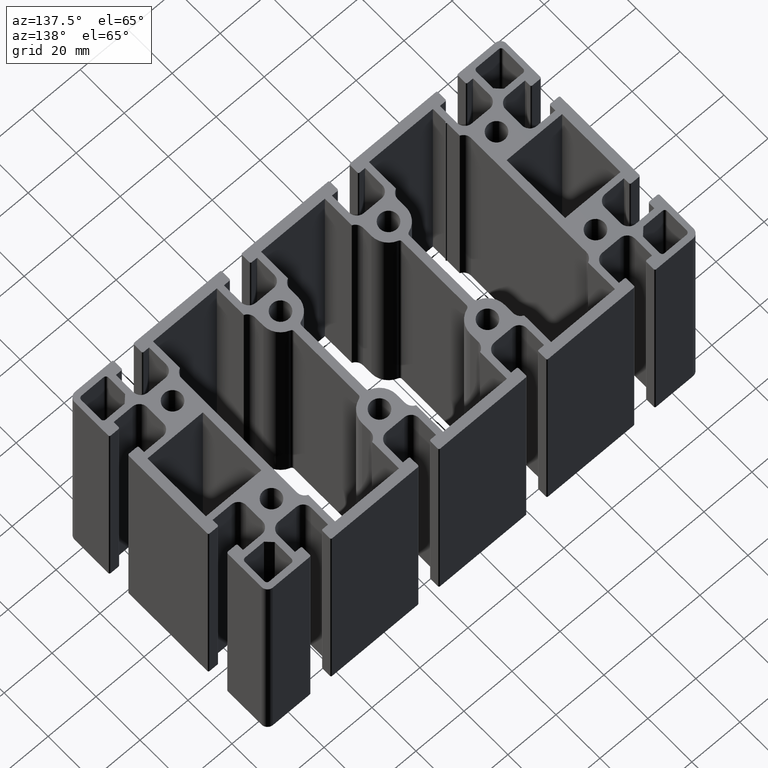
[diagram: clean part render]
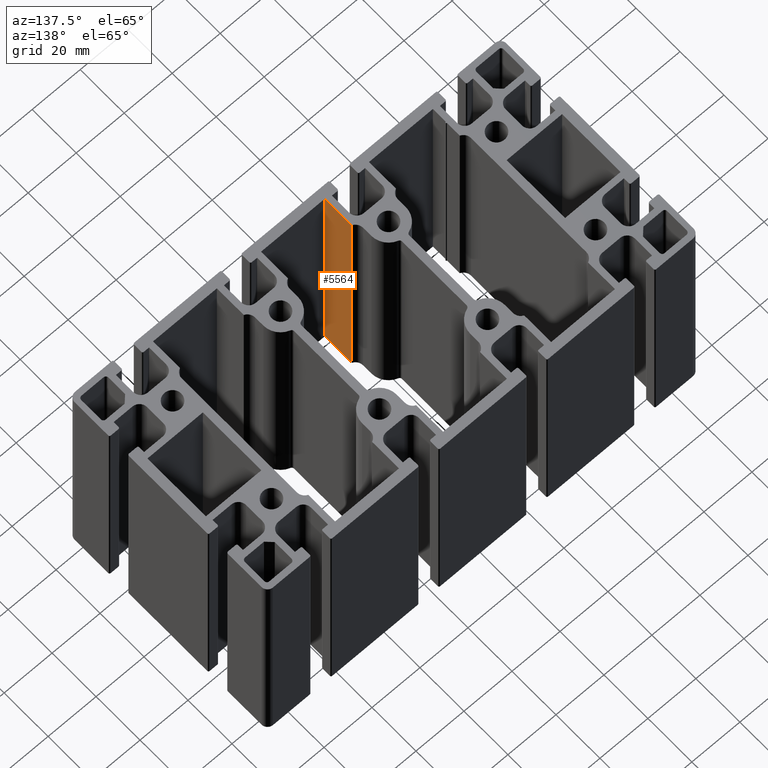
[diagram: same view with one face highlighted and labeled with its STEP entity id]
A machine part, auxiliary view. The second image highlights one B-rep face of the part: STEP entity #5564.
In plain terms, the highlighted planar face has unit normal (-1, 0, 0).
Its self-contained STEP definition (entity closure, byte-faithful):
#461=FACE_OUTER_BOUND('',#749,.T.);
#749=EDGE_LOOP('',(#3788,#3789,#3790,#3791));
#1109=LINE('',#8218,#1709);
#1110=LINE('',#8221,#1710);
#1111=LINE('',#8223,#1711);
#1112=LINE('',#8224,#1712);
#1709=VECTOR('',#6538,100.);
#1710=VECTOR('',#6541,12.2335206051596);
#1711=VECTOR('',#6542,12.2335206051596);
#1712=VECTOR('',#6543,100.);
#2308=VERTEX_POINT('',#8214);
#2309=VERTEX_POINT('',#8216);
#2310=VERTEX_POINT('',#8220);
#2311=VERTEX_POINT('',#8222);
#2909=EDGE_CURVE('',#2309,#2308,#1109,.T.);
#2910=EDGE_CURVE('',#2308,#2310,#1110,.T.);
#2911=EDGE_CURVE('',#2311,#2309,#1111,.T.);
#2912=EDGE_CURVE('',#2310,#2311,#1112,.T.);
#3788=ORIENTED_EDGE('',*,*,#2910,.F.);
#3789=ORIENTED_EDGE('',*,*,#2909,.F.);
#3790=ORIENTED_EDGE('',*,*,#2911,.F.);
#3791=ORIENTED_EDGE('',*,*,#2912,.F.);
#5387=PLANE('',#5882);
#5564=ADVANCED_FACE('',(#461),#5387,.F.);
#5882=AXIS2_PLACEMENT_3D('',#8219,#6539,#6540);
#6538=DIRECTION('',(0.,0.,1.));
#6539=DIRECTION('center_axis',(-1.,0.,0.));
#6540=DIRECTION('ref_axis',(0.,-1.,0.));
#6541=DIRECTION('',(0.,1.,0.));
#6542=DIRECTION('',(0.,-1.,0.));
#6543=DIRECTION('',(0.,0.,-1.));
#8214=CARTESIAN_POINT('',(-13.2999999999997,-41.3999999999956,100.));
#8216=CARTESIAN_POINT('',(-13.2999999999997,-41.3999999999956,0.));
#8218=CARTESIAN_POINT('',(-13.2999999999997,-41.3999999999956,0.));
#8219=CARTESIAN_POINT('Origin',(-13.2999999999997,-29.1664793948361,0.));
#8220=CARTESIAN_POINT('',(-13.2999999999997,-29.1664793948361,100.));
#8221=CARTESIAN_POINT('',(-13.2999999999997,-14.583239697418,100.));
#8222=CARTESIAN_POINT('',(-13.2999999999997,-29.1664793948361,0.));
#8223=CARTESIAN_POINT('',(-13.2999999999997,-14.583239697418,0.));
#8224=CARTESIAN_POINT('',(-13.2999999999997,-29.1664793948361,0.));